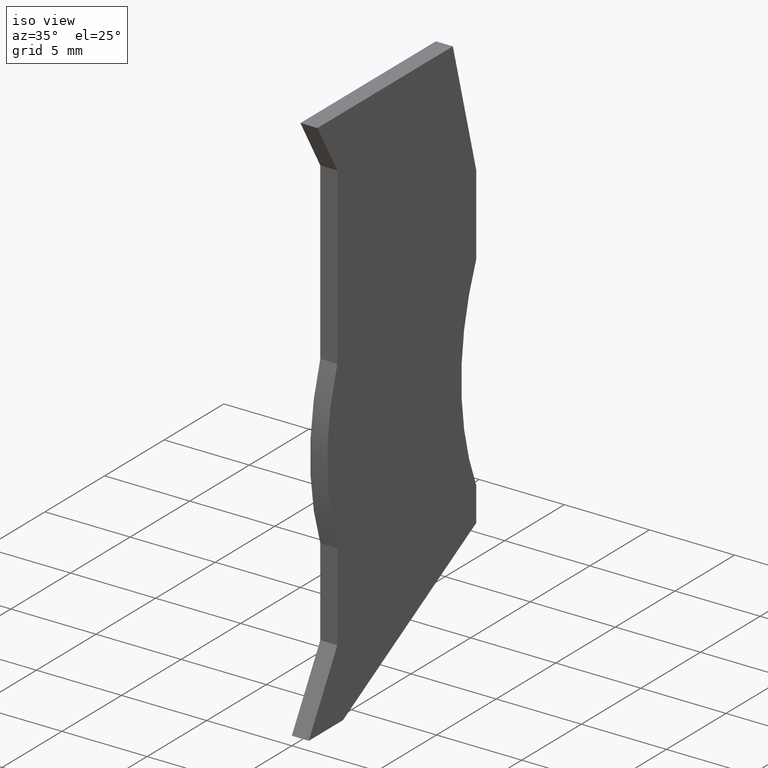
[diagram: clean part render]
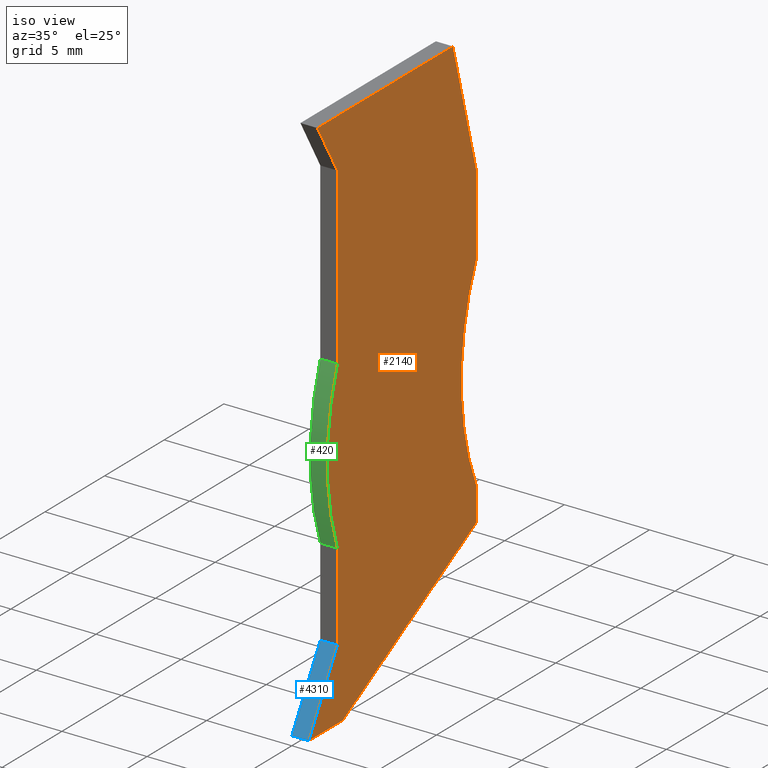
[diagram: same view with three faces highlighted in distinct colors, each labeled with its STEP entity id]
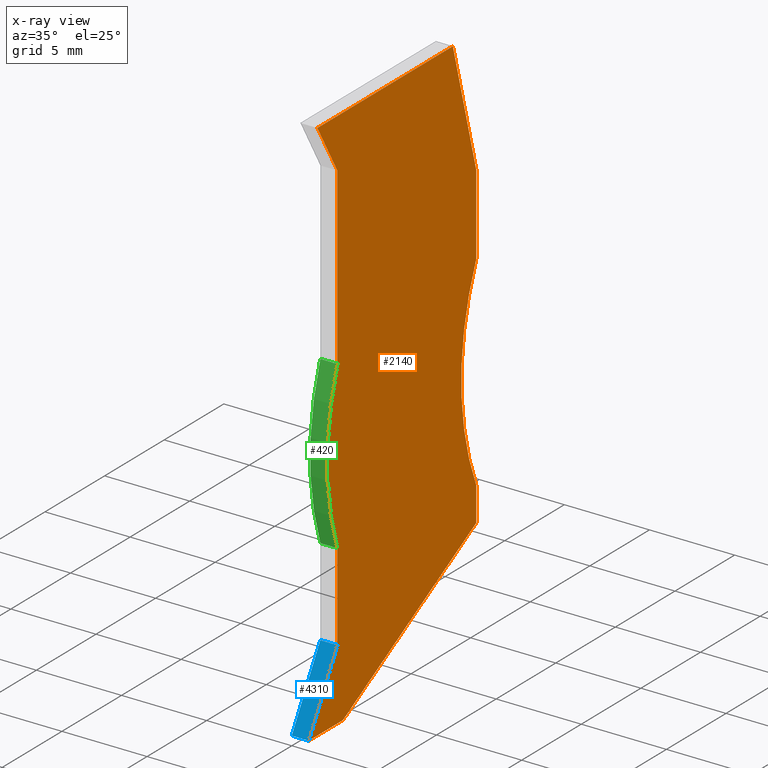
[diagram: x-ray of the same camera — body ghosted, the three highlighted faces saturated]
A machine part, iso view with three faces highlighted in distinct colors.
The next image is the same camera in x-ray (body ghosted, the three faces saturated) — at least one of them is partly hidden behind the body in this view.
Their STEP definitions:

[orange] entity #2140 — the highlighted planar face has unit normal (1, 0, 0).
#60=CARTESIAN_POINT('',(39.9798943065431,-27.2000000000027,54.17));
#70=DIRECTION('',(0.,0.,1.));
#80=DIRECTION('',(1.,0.,0.));
#90=AXIS2_PLACEMENT_3D('',#60,#70,#80);
#100=CIRCLE('',#90,14.45);
#110=CARTESIAN_POINT('',(26.3821672216756,-22.3107957574434,54.17));
#120=VERTEX_POINT('',#110);
#130=CARTESIAN_POINT('',(26.3821672216756,-32.0892042425621,54.17));
#140=VERTEX_POINT('',#130);
#150=EDGE_CURVE('',#120,#140,#100,.T.);
#610=CARTESIAN_POINT('',(26.3821672216756,-12.0389416166838,54.17));
#620=VERTEX_POINT('',#610);
#650=CARTESIAN_POINT('',(26.3821672216756,-12.1300507694265,54.17));
#660=DIRECTION('',(0.,1.,0.));
#670=VECTOR('',#660,1.);
#680=LINE('',#650,#670);
#690=EDGE_CURVE('',#120,#620,#680,.T.);
#1070=CARTESIAN_POINT('',(23.9882355597288,-41.4000000000014,54.17));
#1080=VERTEX_POINT('',#1070);
#1110=CARTESIAN_POINT('',(11.4461541156283,-41.4000000000014,54.17));
#1120=DIRECTION('',(1.,0.,0.));
#1130=VECTOR('',#1120,1.);
#1140=LINE('',#1110,#1130);
#1150=CARTESIAN_POINT('',(26.8570992376999,-41.4000000000014,54.17));
#1160=VERTEX_POINT('',#1150);
#1170=EDGE_CURVE('',#1080,#1160,#1140,.T.);
#1350=CARTESIAN_POINT('',(37.566407,-18.948959,54.17));
#1360=DIRECTION('',(0.,0.,1.));
#1370=DIRECTION('',(1.,0.,0.));
#1380=AXIS2_PLACEMENT_3D('',#1350,#1360,#1370);
#1390=PLANE('',#1380);
#1400=CARTESIAN_POINT('',(40.8323685970354,-12.1300507694265,54.17));
#1410=DIRECTION('',(0.498780693240353,0.86672822733004,0.));
#1420=VECTOR('',#1410,1.);
#1430=LINE('',#1400,#1420);
#1440=CARTESIAN_POINT('',(26.3821672216756,-37.2400792696525,54.17));
#1450=VERTEX_POINT('',#1440);
#1460=EDGE_CURVE('',#1080,#1450,#1430,.T.);
#1470=ORIENTED_EDGE('',*,*,#1460,.F.);
#1480=CARTESIAN_POINT('',(26.3821672216756,-12.1300507694265,54.17));
#1490=DIRECTION('',(0.,-1.,0.));
#1500=VECTOR('',#1490,1.);
#1510=LINE('',#1480,#1500);
#1520=EDGE_CURVE('',#140,#1450,#1510,.T.);
#1530=ORIENTED_EDGE('',*,*,#1520,.T.);
#1540=ORIENTED_EDGE('',*,*,#150,.T.);
#1550=ORIENTED_EDGE('',*,*,#690,.F.);
#1560=CARTESIAN_POINT('',(26.4347691155372,-12.1300507694265,54.17));
#1570=DIRECTION('',(0.499999999999997,-0.86602540378444,0.));
#1580=VECTOR('',#1570,1.);
#1590=LINE('',#1560,#1580);
#1600=CARTESIAN_POINT('',(24.7142360016119,-9.15000000000323,54.17));
#1610=VERTEX_POINT('',#1600);
#1620=EDGE_CURVE('',#1610,#620,#1590,.T.);
#1630=ORIENTED_EDGE('',*,*,#1620,.T.);
#1640=CARTESIAN_POINT('',(11.4461541156283,-9.15000000000323,54.17));
#1650=DIRECTION('',(1.,0.,0.));
#1660=VECTOR('',#1650,1.);
#1670=LINE('',#1640,#1660);
#1680=CARTESIAN_POINT('',(36.0719729923296,-9.15000000000323,54.17));
#1690=VERTEX_POINT('',#1680);
#1700=EDGE_CURVE('',#1610,#1690,#1670,.T.);
#1710=ORIENTED_EDGE('',*,*,#1700,.F.);
#1720=CARTESIAN_POINT('',(36.8704751894023,-12.1300507694265,54.17));
#1730=DIRECTION('',(0.258819045103111,-0.96592582628891,0.));
#1740=VECTOR('',#1730,1.);
#1750=LINE('',#1720,#1740);
#1760=CARTESIAN_POINT('',(38.0321672216756,-16.4655444566078,54.17));
#1770=VERTEX_POINT('',#1760);
#1780=EDGE_CURVE('',#1690,#1770,#1750,.T.);
#1790=ORIENTED_EDGE('',*,*,#1780,.F.);
#1800=CARTESIAN_POINT('',(38.0321672216756,-12.1300507694265,54.17));
#1810=DIRECTION('',(0.,-1.,0.));
#1820=VECTOR('',#1810,1.);
#1830=LINE('',#1800,#1820);
#1840=CARTESIAN_POINT('',(38.0321672216756,-21.2000000000027,54.17));
#1850=VERTEX_POINT('',#1840);
#1860=EDGE_CURVE('',#1770,#1850,#1830,.T.);
#1870=ORIENTED_EDGE('',*,*,#1860,.F.);
#1880=CARTESIAN_POINT('',(51.7798943065431,-27.2000000000027,54.17));
#1890=DIRECTION('',(0.,0.,1.));
#1900=DIRECTION('',(1.,0.,0.));
#1910=AXIS2_PLACEMENT_3D('',#1880,#1890,#1900);
#1920=CIRCLE('',#1910,15.);
#1930=CARTESIAN_POINT('',(38.0321672216756,-33.2000000000027,54.17));
#1940=VERTEX_POINT('',#1930);
#1950=EDGE_CURVE('',#1850,#1940,#1920,.T.);
#1960=ORIENTED_EDGE('',*,*,#1950,.F.);
#1970=CARTESIAN_POINT('',(38.0321672216756,-12.1300507694265,54.17));
#1980=DIRECTION('',(0.,-1.,0.));
#1990=VECTOR('',#1980,1.);
#2000=LINE('',#1970,#1990);
#2010=CARTESIAN_POINT('',(38.0321672216756,-35.2,54.17));
#2020=VERTEX_POINT('',#2010);
#2030=EDGE_CURVE('',#1940,#2020,#2000,.T.);
#2040=ORIENTED_EDGE('',*,*,#2030,.F.);
#2050=CARTESIAN_POINT('',(11.4461541156283,-49.9500920346875,54.17));
#2060=DIRECTION('',(-0.874435210897321,-0.485142311021167,0.));
#2070=VECTOR('',#2060,1.);
#2080=LINE('',#2050,#2070);
#2090=EDGE_CURVE('',#2020,#1160,#2080,.T.);
#2100=ORIENTED_EDGE('',*,*,#2090,.F.);
#2110=ORIENTED_EDGE('',*,*,#1170,.T.);
#2120=EDGE_LOOP('',(#2110,#2100,#2040,#1960,#1870,#1790,#1710,#1630,
#1550,#1540,#1530,#1470));
#2130=FACE_OUTER_BOUND('',#2120,.T.);
#2140=ADVANCED_FACE('',(#2130),#1390,.T.);

[blue] entity #4310 — the highlighted planar face has unit normal (0, -0.8667, 0.4988).
#970=CARTESIAN_POINT('',(23.9882355597288,-41.4000000000014,53.17));
#980=VERTEX_POINT('',#970);
#1030=CARTESIAN_POINT('',(23.9882355597288,-41.4000000000014,53.17));
#1040=DIRECTION('',(0.,0.,1.));
#1050=VECTOR('',#1040,1.);
#1060=LINE('',#1030,#1050);
#1070=CARTESIAN_POINT('',(23.9882355597288,-41.4000000000014,54.17));
#1080=VERTEX_POINT('',#1070);
#1090=EDGE_CURVE('',#980,#1080,#1060,.T.);
#1400=CARTESIAN_POINT('',(40.8323685970354,-12.1300507694265,54.17));
#1410=DIRECTION('',(0.498780693240353,0.86672822733004,0.));
#1420=VECTOR('',#1410,1.);
#1430=LINE('',#1400,#1420);
#1440=CARTESIAN_POINT('',(26.3821672216756,-37.2400792696525,54.17));
#1450=VERTEX_POINT('',#1440);
#1460=EDGE_CURVE('',#1080,#1450,#1430,.T.);
#3700=CARTESIAN_POINT('',(26.3821672216756,-37.2400792696525,53.17));
#3710=VERTEX_POINT('',#3700);
#3740=CARTESIAN_POINT('',(40.8323685970354,-12.1300507694265,53.17));
#3750=DIRECTION('',(0.498780693240353,0.86672822733004,0.));
#3760=VECTOR('',#3750,1.);
#3770=LINE('',#3740,#3760);
#3780=EDGE_CURVE('',#980,#3710,#3770,.T.);
#4150=CARTESIAN_POINT('',(27.0172499578774,-36.1364997975199,54.17));
#4160=DIRECTION('',(-0.86672822733004,0.498780693240353,0.));
#4170=DIRECTION('',(0.498780693240353,0.86672822733004,0.));
#4180=AXIS2_PLACEMENT_3D('',#4150,#4160,#4170);
#4190=PLANE('',#4180);
#4200=ORIENTED_EDGE('',*,*,#3780,.F.);
#4210=CARTESIAN_POINT('',(26.3821672216756,-37.2400792696525,53.17));
#4220=DIRECTION('',(0.,0.,1.));
#4230=VECTOR('',#4220,1.);
#4240=LINE('',#4210,#4230);
#4250=EDGE_CURVE('',#3710,#1450,#4240,.T.);
#4260=ORIENTED_EDGE('',*,*,#4250,.F.);
#4270=ORIENTED_EDGE('',*,*,#1460,.T.);
#4280=ORIENTED_EDGE('',*,*,#1090,.T.);
#4290=EDGE_LOOP('',(#4280,#4270,#4260,#4200));
#4300=FACE_OUTER_BOUND('',#4290,.T.);
#4310=ADVANCED_FACE('',(#4300),#4190,.T.);

[green] entity #420 — the highlighted cylindrical surface (partial cylindrical patch) has radius 14.45 mm, axis along (1, 0, 0).
#10=CARTESIAN_POINT('',(39.9798943065431,-27.2000000000027,50.9699976));
#20=DIRECTION('',(0.,0.,1.));
#30=DIRECTION('',(1.,0.,0.));
#40=AXIS2_PLACEMENT_3D('',#10,#20,#30);
#50=CYLINDRICAL_SURFACE('',#40,14.45);
#60=CARTESIAN_POINT('',(39.9798943065431,-27.2000000000027,54.17));
#70=DIRECTION('',(0.,0.,1.));
#80=DIRECTION('',(1.,0.,0.));
#90=AXIS2_PLACEMENT_3D('',#60,#70,#80);
#100=CIRCLE('',#90,14.45);
#110=CARTESIAN_POINT('',(26.3821672216756,-22.3107957574434,54.17));
#120=VERTEX_POINT('',#110);
#130=CARTESIAN_POINT('',(26.3821672216756,-32.0892042425621,54.17));
#140=VERTEX_POINT('',#130);
#150=EDGE_CURVE('',#120,#140,#100,.T.);
#160=ORIENTED_EDGE('',*,*,#150,.F.);
#170=CARTESIAN_POINT('',(26.3821672216756,-32.0892042425621,50.9699976))
;
#180=DIRECTION('',(0.,0.,1.));
#190=VECTOR('',#180,1.);
#200=LINE('',#170,#190);
#210=CARTESIAN_POINT('',(26.3821672216756,-32.0892042425621,53.17));
#220=VERTEX_POINT('',#210);
#230=EDGE_CURVE('',#220,#140,#200,.T.);
#240=ORIENTED_EDGE('',*,*,#230,.T.);
#250=CARTESIAN_POINT('',(39.9798943065431,-27.2000000000027,53.17));
#260=DIRECTION('',(0.,0.,1.));
#270=DIRECTION('',(1.,0.,0.));
#280=AXIS2_PLACEMENT_3D('',#250,#260,#270);
#290=CIRCLE('',#280,14.45);
#300=CARTESIAN_POINT('',(26.3821672216756,-22.3107957574434,53.17));
#310=VERTEX_POINT('',#300);
#320=EDGE_CURVE('',#310,#220,#290,.T.);
#330=ORIENTED_EDGE('',*,*,#320,.T.);
#340=CARTESIAN_POINT('',(26.3821672216756,-22.3107957574434,50.9699976))
;
#350=DIRECTION('',(0.,0.,1.));
#360=VECTOR('',#350,1.);
#370=LINE('',#340,#360);
#380=EDGE_CURVE('',#310,#120,#370,.T.);
#390=ORIENTED_EDGE('',*,*,#380,.F.);
#400=EDGE_LOOP('',(#390,#330,#240,#160));
#410=FACE_OUTER_BOUND('',#400,.T.);
#420=ADVANCED_FACE('',(#410),#50,.T.);